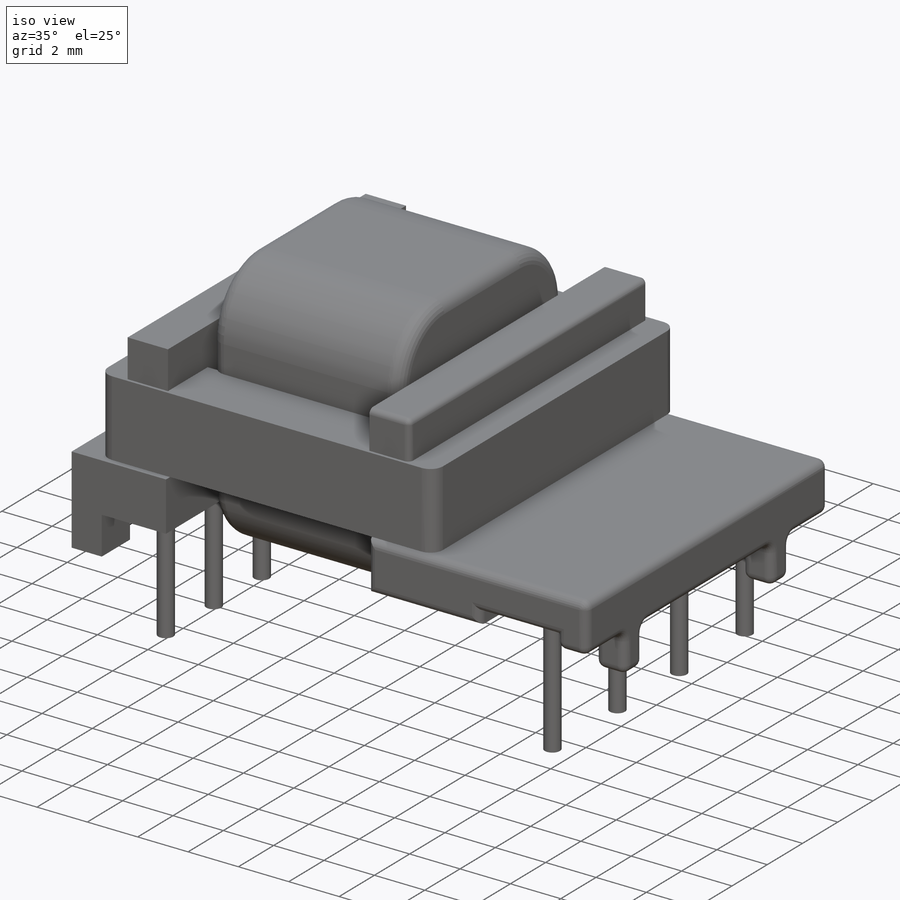
[diagram: iso view]
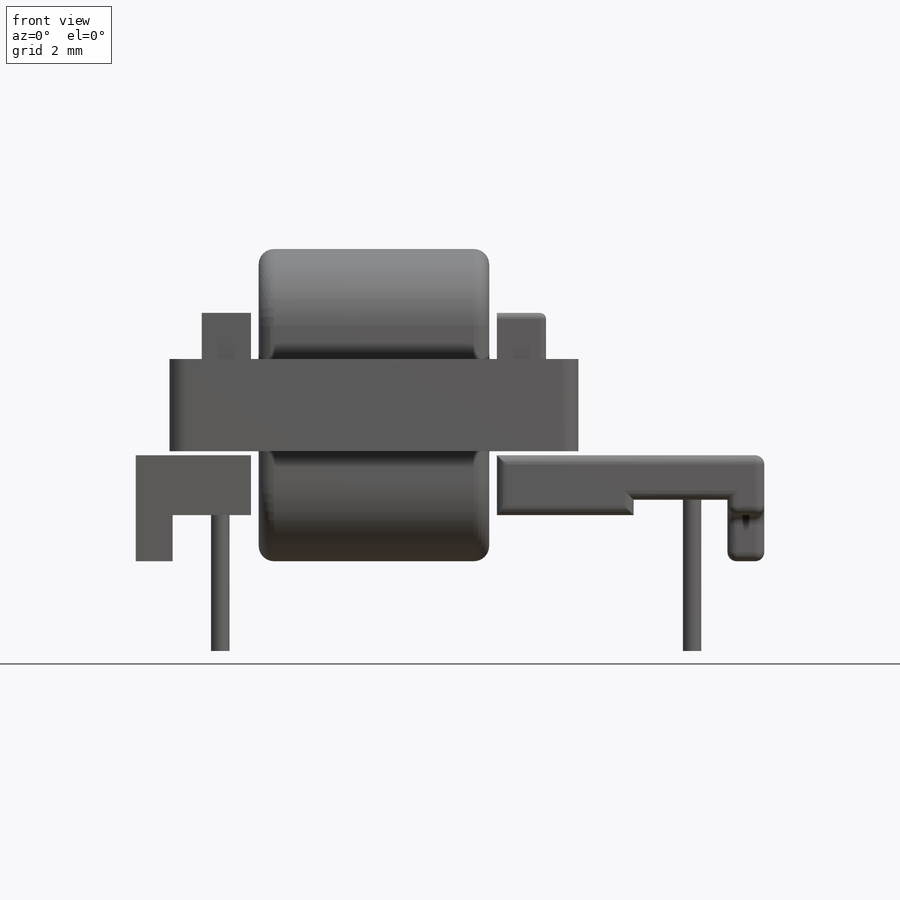
[diagram: front view]
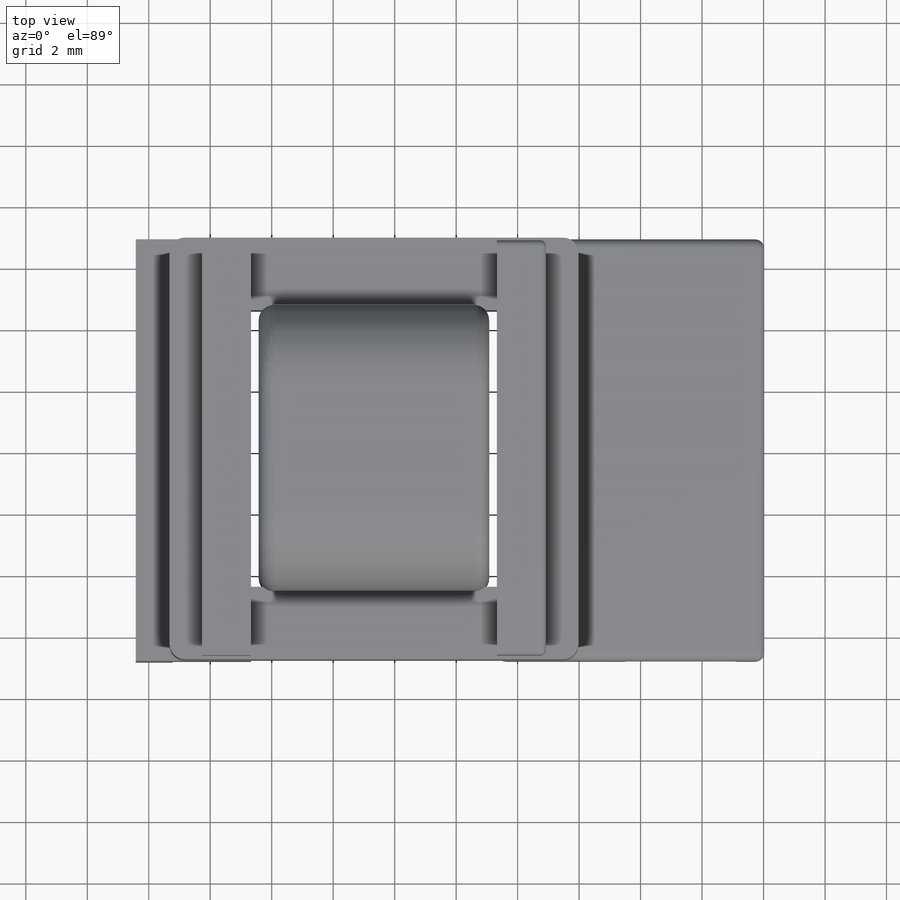
[diagram: top view]
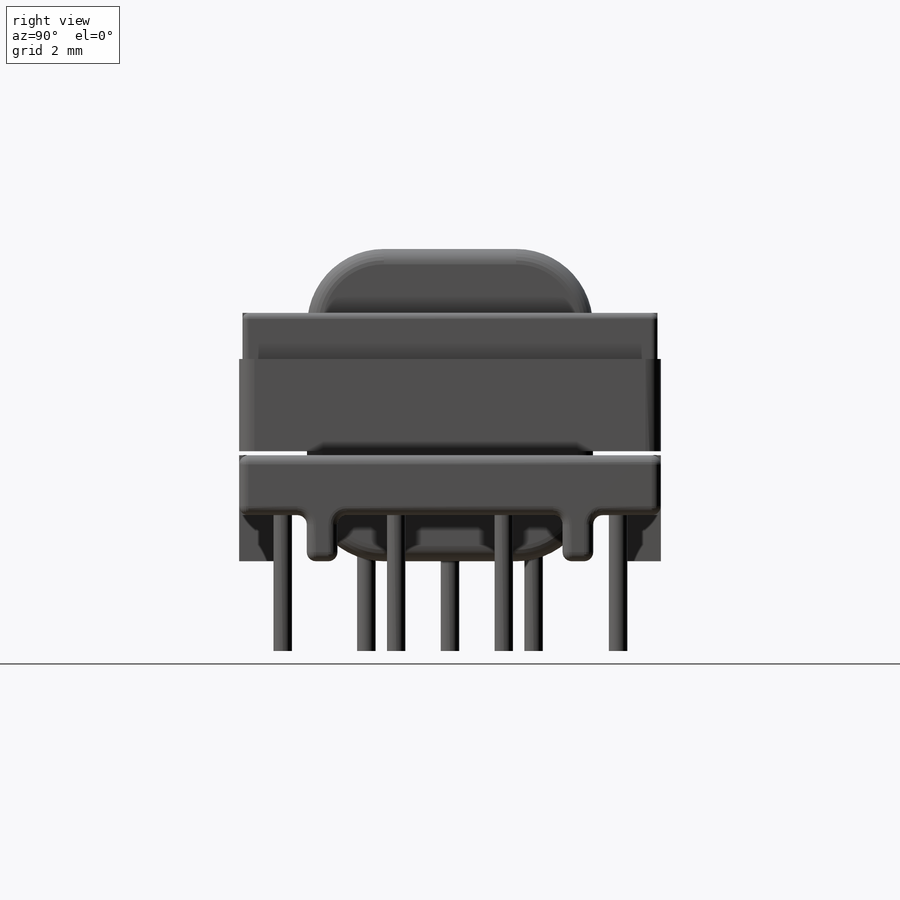
[diagram: right view]
SOLIDWORKS PART (.sldprt)
format: sldprt  version: not decoded by parser v0  size: 877,568 bytes
history: native  units: mm
features: sketch x10, extrude x6, cut_extrude x4, fillet x4, plane x2, material x1 (+12 scaffold rows collapsed)
feature tree (39):
  scaffold x12  (default folders/planes/origin — collapsed)
  material  "Material <not specified>"
  sketch  "Sketch1"  dims[c1.D3=~7.505726mm c1.D4=~7.505726mm c1.D5=~7.505726mm c1.D6=~7.505726mm c1.D7=7.44mm c2.D6=0.6mm c2.D1=3.5mm c2.D2=2.75mm c2.D3=2.72mm c2.D4=2.72mm c2.D5=2.72mm c3.D6=15.35mm c3.D7=15.35mm]
  extrude  "Boss-Extrude1"  Depth=2.92mm
  sketch  "Sketch2"  dims[c1.D1=20.45mm c1.D2=2.75mm c1.D3=3.45mm c2.D2=10.425mm]
  extrude  "Boss-Extrude2"  Depth=13.72mm
  sketch  "Sketch3"  dims[D1=1.2mm D2=1.5mm D3=4.25mm D4=0.5mm D5=1.2mm]
  cut_extrude  "Cut-Extrude1"  [1 undecoded]
  sketch  "Sketch4"  dims[D1=1.0mm D2=2.2mm D3=1.5mm]
  cut_extrude  "Cut-Extrude2"  Depth=2mm
  sketch  "Sketch5"  dims[D1=1.5mm D2=1.6mm]
  cut_extrude  "Cut-Extrude3"  Depth=2mm
  sketch  "Sketch6"  dims[c1.D1=8.0mm c1.D2=4.0mm c1.D3=5.0mm c1.D4=~6.136709mm c2.D2=2.675mm]
  cut_extrude  "Cut-Extrude4"  [1 undecoded]
  plane  "Plane1"  Offset=2.675mm
  sketch  "Sketch7"  dims[D3=2.5mm D1=9.3mm D2=10.16mm D4=~2.789237mm]
  extrude  "Boss-Extrude3"  Depth=7.5mm
  plane  "Plane2"  Offset=5.08mm
  sketch  "Sketch8"  dims[D1=8.0mm D2=9.0mm D3=13.72mm D4=13.3mm]
  extrude  "Boss-Extrude4"  Depth=3mm
  sketch  "Sketch9"  dims[D1=1.5mm D2=1.6mm D3=8.0mm D4=1.325mm]
  extrude  "Boss-Extrude5"  Depth=13.5mm
  sketch  "Sketch10"
  extrude  "Boss-Extrude6"  Depth=2mm
  fillet  "Fillet1"  Radius=0.3mm
  fillet  "Fillet2"  Radius=0.2mm
  fillet  "Fillet3"  Radius=0.5mm
  fillet  "Fillet4"  Radius=0.5mm
decode coverage: 21 of 24 modeling features carry decoded parameters
note: ~ marks probable driven/reference dimensions
note: 2 parameter values undecoded
note: suppression state not decoded; provenance and decode notes live in map.json
